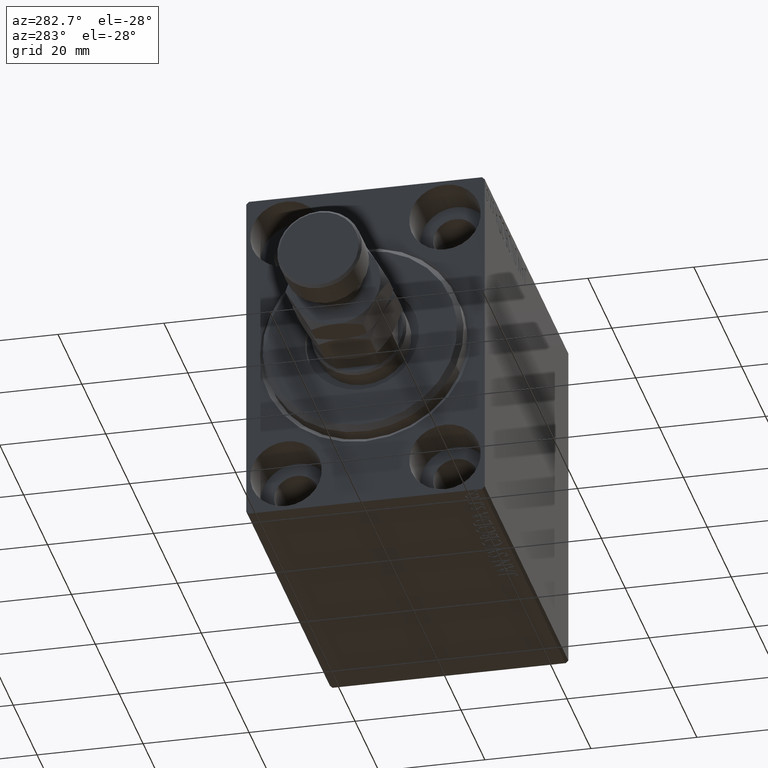
[diagram: clean part render]
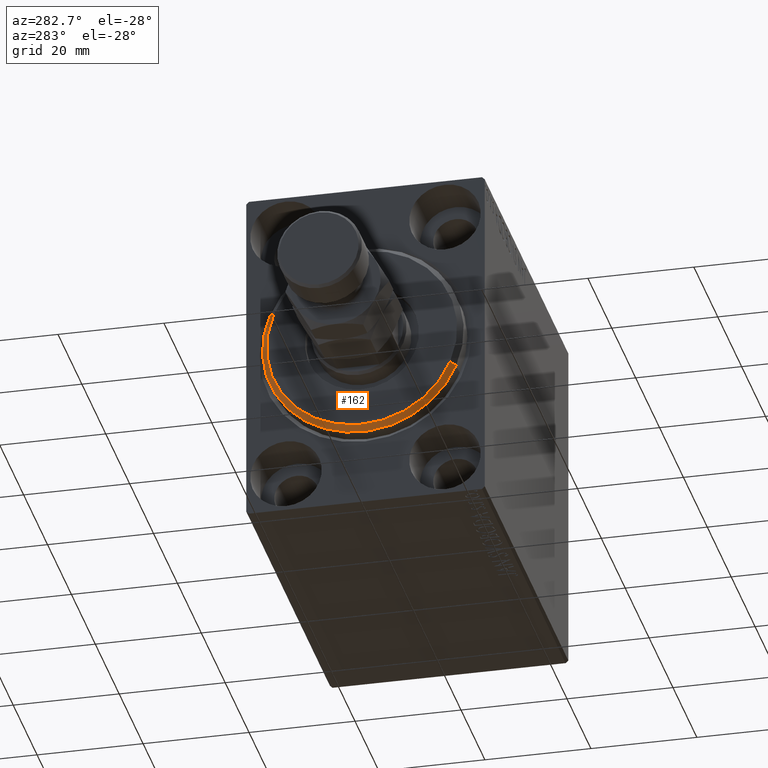
[diagram: same view with one face highlighted and labeled with its STEP entity id]
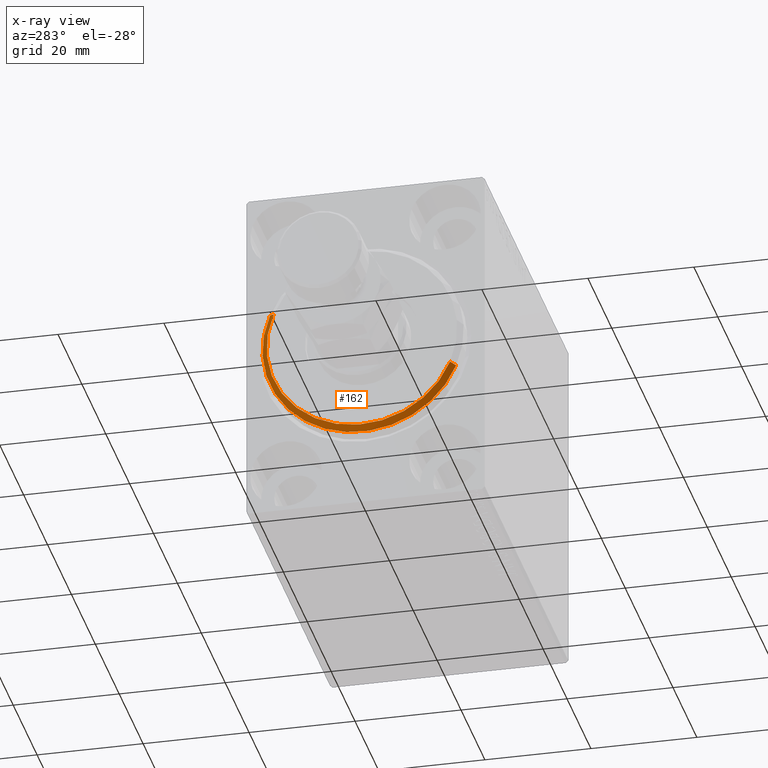
[diagram: x-ray of the same camera — body ghosted, the highlighted face saturated]
A machine part, auxiliary view. The second image highlights one B-rep face of the part: STEP entity #162.
The next image is the same camera in x-ray: the body ghosted, the highlighted face saturated — about 0% of this face is hidden behind the body in this view.
In plain terms, the highlighted conical surface has half-angle 45 deg.
Its self-contained STEP definition (entity closure, byte-faithful):
#112 = CARTESIAN_POINT ( 'NONE',  ( 1.999999999999992228, 2.326828918379970970E-15, -19.00000000000000000 ) ) ;
#162 = ADVANCED_FACE ( 'NONE', ( #30248 ), #22967, .T. ) ;
#432 = ORIENTED_EDGE ( 'NONE', *, *, #2755, .T. ) ;
#1318 = CARTESIAN_POINT ( 'NONE',  ( 3.000000000000000000, 2.204364238465235033E-15, -17.99999999999999645 ) ) ;
#1750 = DIRECTION ( 'NONE',  ( 0.000000000000000000, 0.000000000000000000, 1.000000000000000000 ) ) ;
#2755 = EDGE_CURVE ( 'NONE', #37960, #9186, #43832, .T. ) ;
#6886 = CARTESIAN_POINT ( 'NONE',  ( 1.999999999999992228, 0.000000000000000000, 19.00000000000000000 ) ) ;
#6978 = EDGE_CURVE ( 'NONE', #44983, #19804, #28178, .T. ) ;
#7745 = DIRECTION ( 'NONE',  ( -1.000000000000000000, 0.000000000000000000, 0.000000000000000000 ) ) ;
#7943 = CARTESIAN_POINT ( 'NONE',  ( 3.000000000000000000, 0.000000000000000000, 0.000000000000000000 ) ) ;
#8258 = ORIENTED_EDGE ( 'NONE', *, *, #32148, .F. ) ;
#8676 = DIRECTION ( 'NONE',  ( -0.7071067811865487940, 8.659560562354918067E-17, -0.7071067811865463515 ) ) ;
#8935 = EDGE_CURVE ( 'NONE', #19804, #9186, #40688, .T. ) ;
#9186 = VERTEX_POINT ( 'NONE', #112 ) ;
#10146 = AXIS2_PLACEMENT_3D ( 'NONE', #7943, #21951, #44010 ) ;
#10297 = CARTESIAN_POINT ( 'NONE',  ( 3.000000000000000000, 2.265596578422603002E-15, -17.99999999999999645 ) ) ;
#10309 = CARTESIAN_POINT ( 'NONE',  ( 3.000000000000000000, 0.000000000000000000, 17.99999999999999645 ) ) ;
#11178 = CARTESIAN_POINT ( 'NONE',  ( 3.000000000000000000, 0.000000000000000000, 17.99999999999999645 ) ) ;
#13504 = VECTOR ( 'NONE', #8676, 1000.000000000000000 ) ;
#16513 = VECTOR ( 'NONE', #28413, 1000.000000000000000 ) ;
#19168 = EDGE_LOOP ( 'NONE', ( #8258, #432, #25205, #33357 ) ) ;
#19804 = VERTEX_POINT ( 'NONE', #6886 ) ;
#20766 = AXIS2_PLACEMENT_3D ( 'NONE', #22889, #22663, #1750 ) ;
#21951 = DIRECTION ( 'NONE',  ( 1.000000000000000000, -0.000000000000000000, 0.000000000000000000 ) ) ;
#22663 = DIRECTION ( 'NONE',  ( -1.000000000000000000, 0.000000000000000000, 0.000000000000000000 ) ) ;
#22889 = CARTESIAN_POINT ( 'NONE',  ( 3.000000000000000000, 0.000000000000000000, 0.000000000000000000 ) ) ;
#22967 = CONICAL_SURFACE ( 'NONE', #20766, 17.99999999999999645, 0.7853981633974466137 ) ;
#25205 = ORIENTED_EDGE ( 'NONE', *, *, #8935, .F. ) ;
#28178 = LINE ( 'NONE', #11178, #16513 ) ;
#28413 = DIRECTION ( 'NONE',  ( -0.7071067811865487940, 0.000000000000000000, 0.7071067811865463515 ) ) ;
#30248 = FACE_OUTER_BOUND ( 'NONE', #19168, .T. ) ;
#32148 = EDGE_CURVE ( 'NONE', #37960, #44983, #35137, .T. ) ;
#33357 = ORIENTED_EDGE ( 'NONE', *, *, #6978, .F. ) ;
#35137 = CIRCLE ( 'NONE', #10146, 17.99999999999999645 ) ;
#35797 = DIRECTION ( 'NONE',  ( 0.000000000000000000, 0.000000000000000000, -1.000000000000000000 ) ) ;
#36311 = AXIS2_PLACEMENT_3D ( 'NONE', #39240, #7745, #35797 ) ;
#37960 = VERTEX_POINT ( 'NONE', #10297 ) ;
#39240 = CARTESIAN_POINT ( 'NONE',  ( 1.999999999999992228, 0.000000000000000000, 0.000000000000000000 ) ) ;
#40688 = CIRCLE ( 'NONE', #36311, 19.00000000000000000 ) ;
#43832 = LINE ( 'NONE', #1318, #13504 ) ;
#44010 = DIRECTION ( 'NONE',  ( 0.000000000000000000, 0.000000000000000000, -1.000000000000000000 ) ) ;
#44983 = VERTEX_POINT ( 'NONE', #10309 ) ;